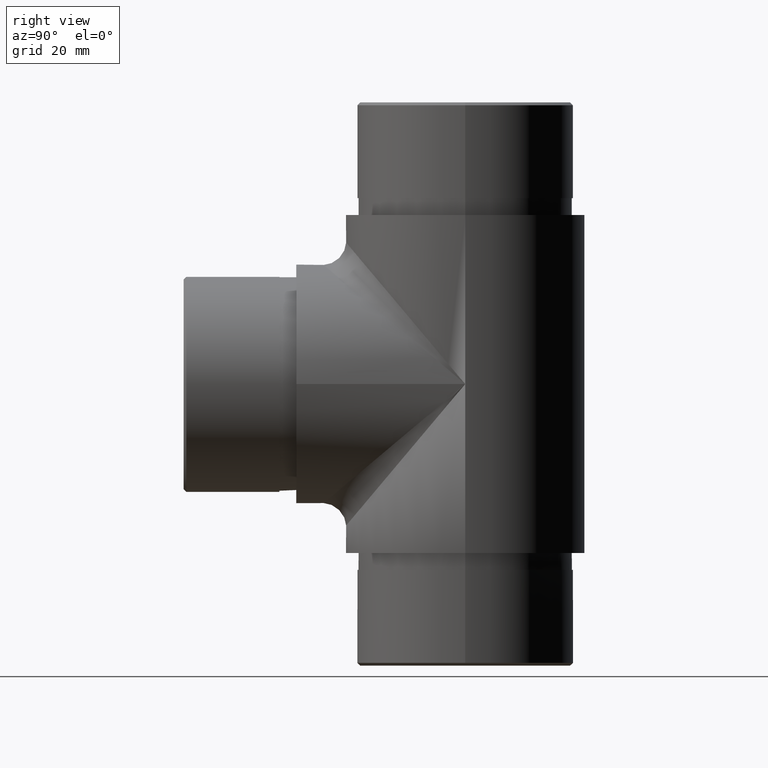
[diagram: clean part render]
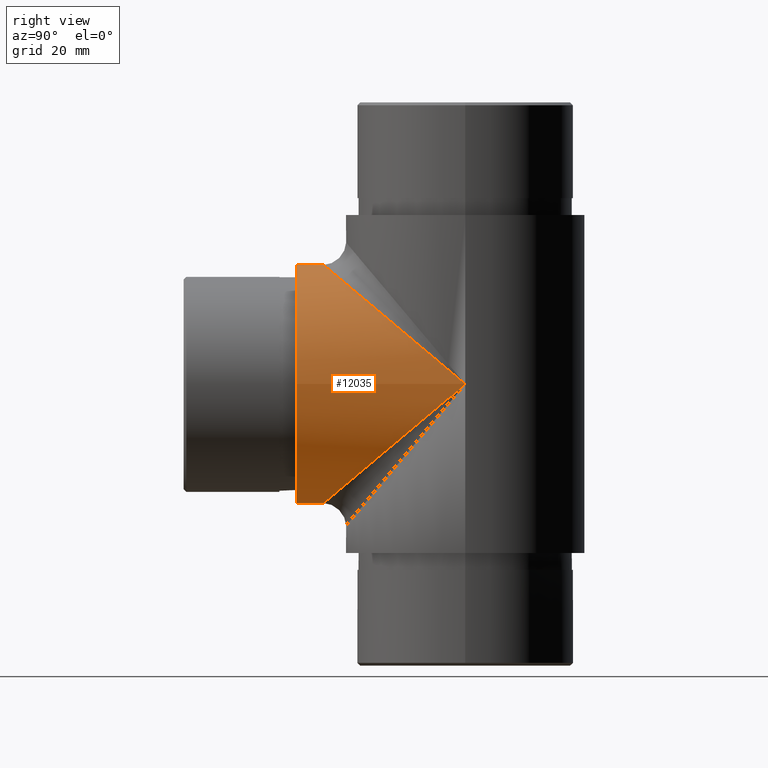
[diagram: same view with one face highlighted and labeled with its STEP entity id]
A machine part, right view. The second image highlights one B-rep face of the part: STEP entity #12035.
In plain terms, the highlighted cylindrical surface (bore or boss wall) has radius 21.2 mm, axis along (-0, -1, -0).
Its self-contained STEP definition (entity closure, byte-faithful):
#385 = CARTESIAN_POINT ( 'NONE',  ( -21.19999999999999900, 50.00000000000568400, 0.0000000000000000000 ) ) ;
#1091 = DIRECTION ( 'NONE',  ( 0.0000000000000000000, 1.000000000000000000, 0.0000000000000000000 ) ) ;
#1495 = CARTESIAN_POINT ( 'NONE',  ( 21.19999999999999200, -0.3999999999891867800, -42.39999999999999100 ) ) ;
#2186 = VERTEX_POINT ( 'NONE', #4197 ) ;
#2267 = CARTESIAN_POINT ( 'NONE',  ( 0.0000000000000000000, 500000.0000000000600, 0.0000000000000000000 ) ) ;
#2400 = EDGE_CURVE ( 'NONE', #3219, #3219, #11982, .T. ) ;
#2598 = AXIS2_PLACEMENT_3D ( 'NONE', #9442, #1091, #8206 ) ;
#3090 = FACE_OUTER_BOUND ( 'NONE', #5672, .T. ) ;
#3219 = VERTEX_POINT ( 'NONE', #7064 ) ;
#3751 = CARTESIAN_POINT ( 'NONE',  ( 21.19999999999999900, 50.00000000000568400, 0.0000000000000000000 ) ) ;
#3754 = ORIENTED_EDGE ( 'NONE', *, *, #2400, .T. ) ;
#4197 = CARTESIAN_POINT ( 'NONE',  ( -21.19999999999999900, 50.00000000000568400, 0.0000000000000000000 ) ) ;
#4228 = FACE_OUTER_BOUND ( 'NONE', #4710, .T. ) ;
#4405 = DIRECTION ( 'NONE',  ( 0.0000000000000000000, 0.0000000000000000000, -1.000000000000000000 ) ) ;
#4419 = ORIENTED_EDGE ( 'NONE', *, *, #9424, .T. ) ;
#4710 = EDGE_LOOP ( 'NONE', ( #12714, #4419 ) ) ;
#4842 = CARTESIAN_POINT ( 'NONE',  ( -21.19999999999998900, -0.3999999999891937800, 42.39999999999999900 ) ) ;
#4991 = EDGE_CURVE ( 'NONE', #7272, #2186, #5347, .T. ) ;
#5054 = CYLINDRICAL_SURFACE ( 'NONE', #6649, 21.19999999999999900 ) ;
#5347 =( BOUNDED_CURVE ( )  B_SPLINE_CURVE ( 3, ( #3751, #10051, #4842, #7022 ),
 .UNSPECIFIED., .F., .T. ) 
 B_SPLINE_CURVE_WITH_KNOTS ( ( 4, 4 ),
 ( 1.570796326794896800, 4.712388980384689700 ),
 .UNSPECIFIED. ) 
 CURVE ( )  GEOMETRIC_REPRESENTATION_ITEM ( )  RATIONAL_B_SPLINE_CURVE ( ( 1.000000000000000000, 0.3333333333333333700, 0.3333333333333333700, 1.000000000000000000 ) ) 
 REPRESENTATION_ITEM ( '' )  );
#5672 = EDGE_LOOP ( 'NONE', ( #3754 ) ) ;
#6154 = CARTESIAN_POINT ( 'NONE',  ( 21.19999999999999900, 50.00000000000568400, 0.0000000000000000000 ) ) ;
#6649 = AXIS2_PLACEMENT_3D ( 'NONE', #2267, #10687, #4405 ) ;
#6980 = CARTESIAN_POINT ( 'NONE',  ( 21.19999999999999900, 50.00000000000568400, 0.0000000000000000000 ) ) ;
#7022 = CARTESIAN_POINT ( 'NONE',  ( -21.19999999999999900, 50.00000000000568400, 0.0000000000000000000 ) ) ;
#7064 = CARTESIAN_POINT ( 'NONE',  ( 0.0000000000000000000, 20.00000000000000000, 21.19999999999999900 ) ) ;
#7272 = VERTEX_POINT ( 'NONE', #6154 ) ;
#8206 = DIRECTION ( 'NONE',  ( 0.0000000000000000000, 0.0000000000000000000, 1.000000000000000000 ) ) ;
#9273 =( BOUNDED_CURVE ( )  B_SPLINE_CURVE ( 3, ( #385, #10065, #1495, #6980 ),
 .UNSPECIFIED., .F., .T. ) 
 B_SPLINE_CURVE_WITH_KNOTS ( ( 4, 4 ),
 ( 4.712388980384689700, 7.853981633974482800 ),
 .UNSPECIFIED. ) 
 CURVE ( )  GEOMETRIC_REPRESENTATION_ITEM ( )  RATIONAL_B_SPLINE_CURVE ( ( 1.000000000000000000, 0.3333333333333333700, 0.3333333333333333700, 1.000000000000000000 ) ) 
 REPRESENTATION_ITEM ( '' )  );
#9424 = EDGE_CURVE ( 'NONE', #2186, #7272, #9273, .T. ) ;
#9442 = CARTESIAN_POINT ( 'NONE',  ( 0.0000000000000000000, 20.00000000000000000, 0.0000000000000000000 ) ) ;
#10051 = CARTESIAN_POINT ( 'NONE',  ( 21.19999999999998900, -0.3999999999891937800, 42.39999999999999100 ) ) ;
#10065 = CARTESIAN_POINT ( 'NONE',  ( -21.20000000000000300, -0.3999999999891798400, -42.39999999999998400 ) ) ;
#10687 = DIRECTION ( 'NONE',  ( -0.0000000000000000000, -1.000000000000000000, -0.0000000000000000000 ) ) ;
#11982 = CIRCLE ( 'NONE', #2598, 21.19999999999999900 ) ;
#12035 = ADVANCED_FACE ( 'NONE', ( #3090, #4228 ), #5054, .T. ) ;
#12714 = ORIENTED_EDGE ( 'NONE', *, *, #4991, .T. ) ;